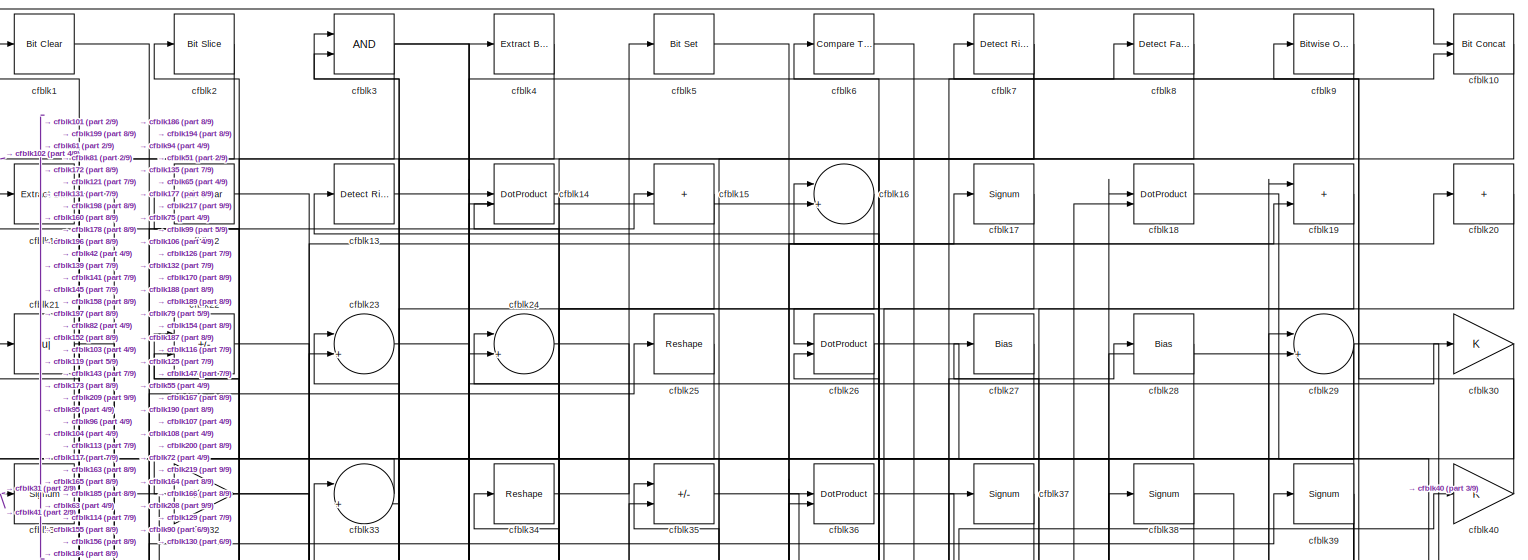
[diagram: root canvas - part 1/9, full width, top band]
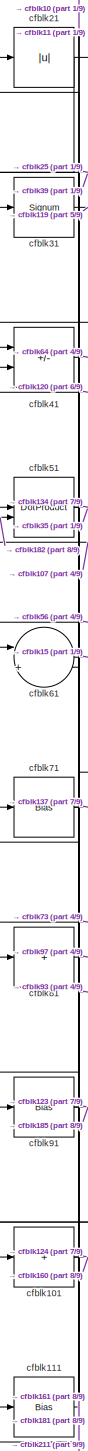
[diagram: root canvas - part 2/9, top left region]
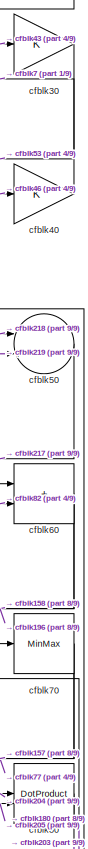
[diagram: root canvas - part 3/9, top right region]
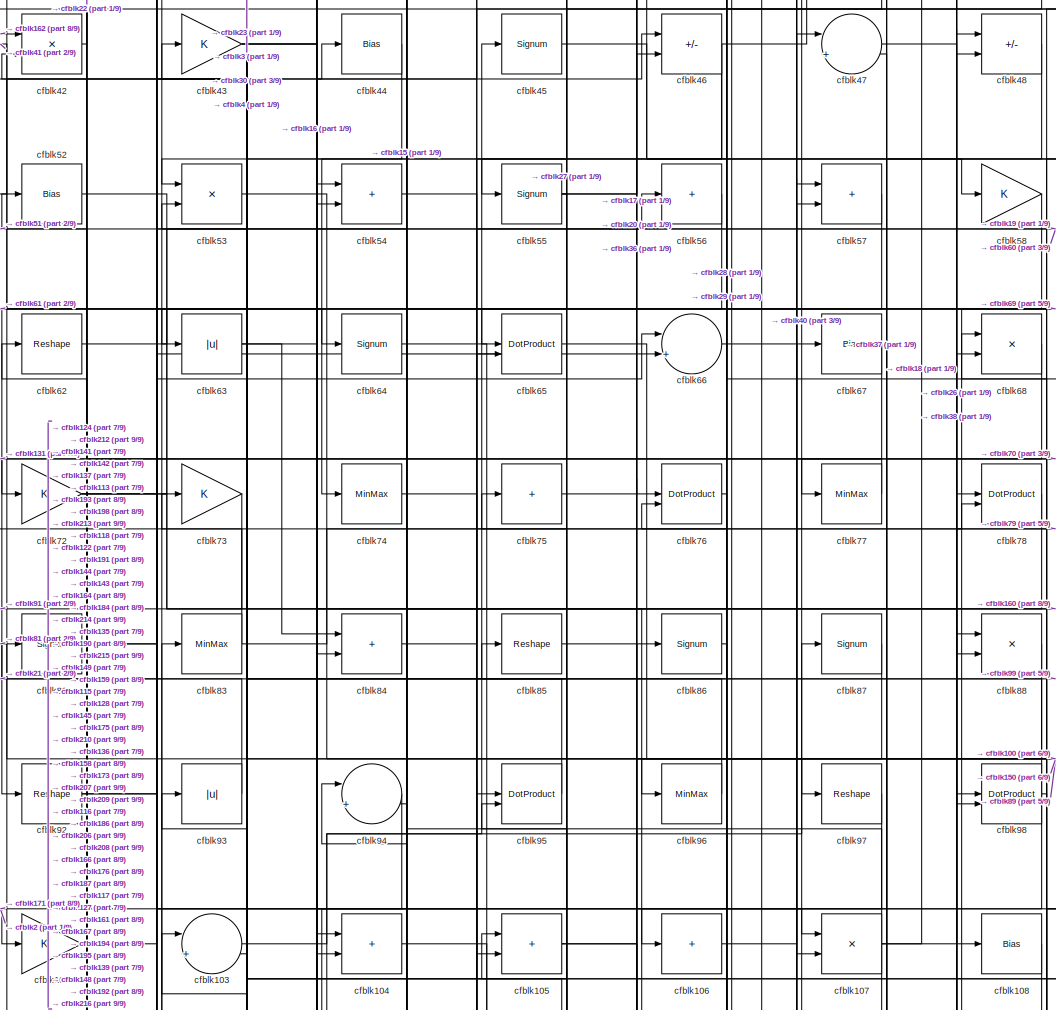
[diagram: root canvas - part 4/9, central region]
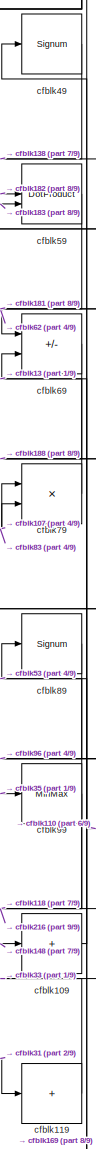
[diagram: root canvas - part 5/9, middle right region]
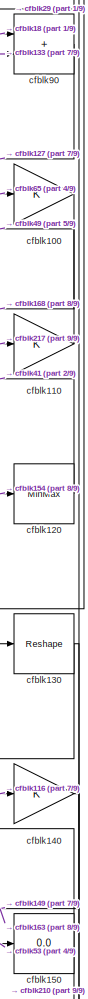
[diagram: root canvas - part 6/9, middle right region]
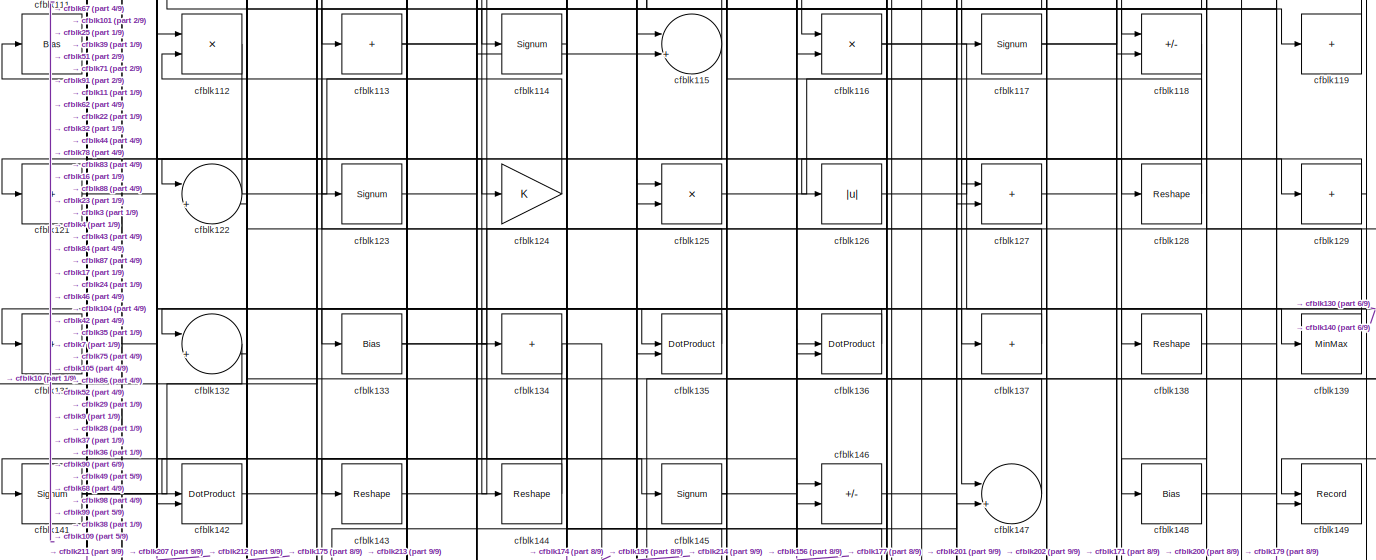
[diagram: root canvas - part 7/9, full width, middle band]
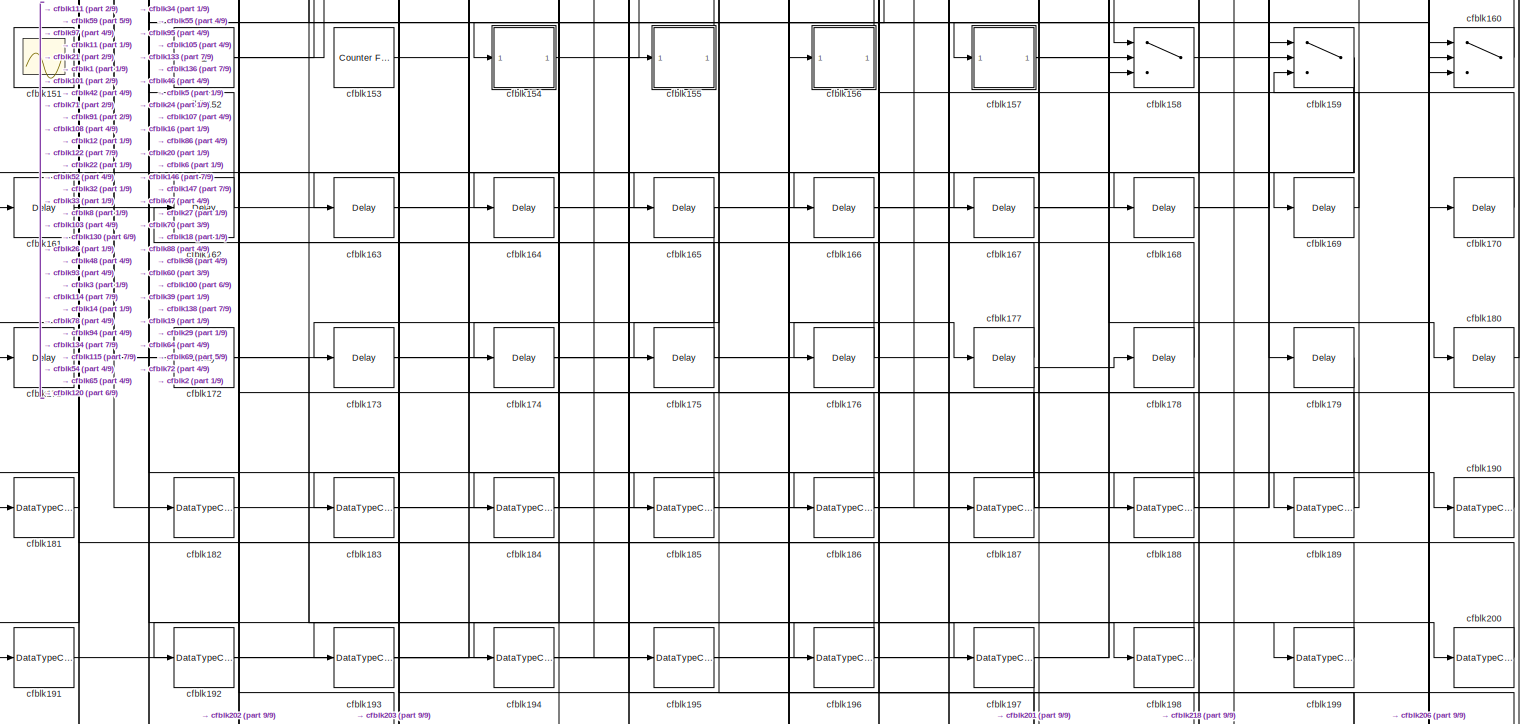
[diagram: root canvas - part 8/9, full width, bottom band]
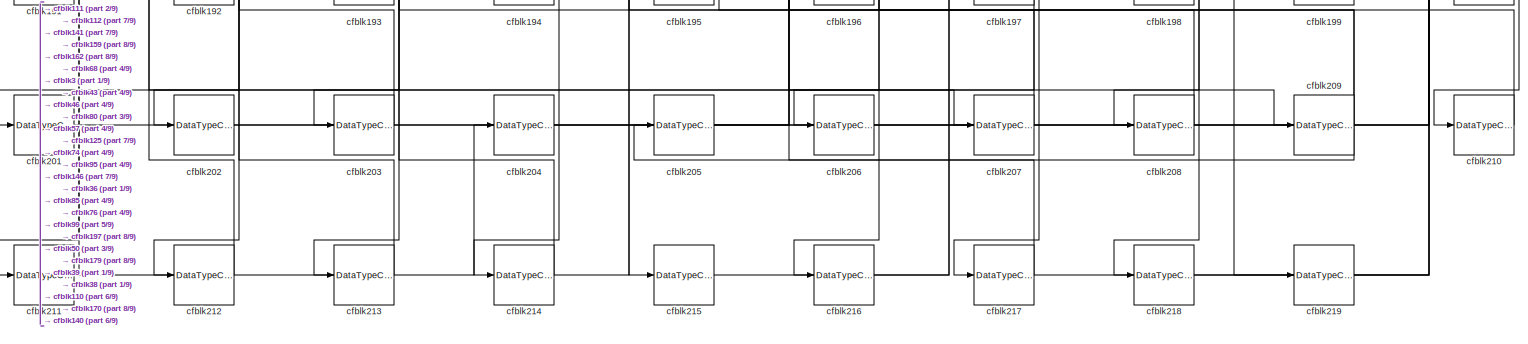
[diagram: root canvas - part 9/9, full width, bottom band]
MODEL slx_a0b1b28ec105
KIND model
CONFIG AbsTol = auto
CONFIG EnableMultiTasking = off
CONFIG FixedStep = auto
CONFIG MaxStep = auto
CONFIG MinStep = auto
CONFIG RelTol = 1e-3
CONFIG SampleTimeConstraint = Unconstrained
CONFIG SolverName = VariableStepAuto
CONFIG StartTime = 0.0
CONFIG StopTime = 10.0
BLOCK [Reference] cfblk1  REF=simulink/Logic and Bit
Operations/Bit Clear
  LibrarySourceBlock = hdlsllib/Logic and Bit\nOperations/Bit Clear
  SourceBlock = simulink/Logic and Bit\nOperations/Bit Clear
  SourceType = Bit Clear
BLOCK [Reference] cfblk10  REF=hdlsllib/Logic and Bit
Operations/Bit Concat
  SourceBlock = hdlsllib/Logic and Bit\nOperations/Bit Concat
  SourceType = Bit Concat
BLOCK [Gain] cfblk100
BLOCK [Sum] cfblk101
  IconShape = rectangular
  Inputs = +
BLOCK [Gain] cfblk102
BLOCK [Sum] cfblk103
  Inputs = |++
BLOCK [Sum] cfblk104
  IconShape = rectangular
BLOCK [Sum] cfblk105
  IconShape = rectangular
BLOCK [Sum] cfblk106
  IconShape = rectangular
  Inputs = +
BLOCK [Product] cfblk107
  Inputs = */
  RndMeth = Zero
  SaturateOnIntegerOverflow = on
BLOCK [Bias] cfblk108
  Bias = 0.0
  SaturateOnIntegerOverflow = off
BLOCK [Sum] cfblk109
  IconShape = rectangular
  Inputs = +
BLOCK [Reference] cfblk11  REF=simulink/Logic and Bit
Operations/Extract Bits
  LibrarySourceBlock = hdlsllib/Logic and Bit\nOperations/Extract Bits
  SourceBlock = simulink/Logic and Bit\nOperations/Extract Bits
  SourceType = Extract Bits
BLOCK [Gain] cfblk110
BLOCK [Bias] cfblk111
  Bias = 0.0
  SaturateOnIntegerOverflow = off
BLOCK [Product] cfblk112
  Inputs = */
  RndMeth = Zero
  SaturateOnIntegerOverflow = on
BLOCK [Sum] cfblk113
  IconShape = rectangular
  Inputs = +
BLOCK [Signum] cfblk114
BLOCK [Sum] cfblk115
  Inputs = |++
BLOCK [Product] cfblk116
  Inputs = */
  RndMeth = Zero
  SaturateOnIntegerOverflow = on
BLOCK [Signum] cfblk117
BLOCK [Sum] cfblk118
  IconShape = rectangular
  Inputs = +-
BLOCK [Sum] cfblk119
  IconShape = rectangular
  Inputs = +
BLOCK [Reference] cfblk12  REF=simulink/Logic and Bit
Operations/Bit Clear
  LibrarySourceBlock = hdlsllib/Logic and Bit\nOperations/Bit Clear
  SourceBlock = simulink/Logic and Bit\nOperations/Bit Clear
  SourceType = Bit Clear
BLOCK [MinMax] cfblk120
BLOCK [Sum] cfblk121
  IconShape = rectangular
  Inputs = +
BLOCK [Sum] cfblk122
  Inputs = |++
BLOCK [Signum] cfblk123
BLOCK [Gain] cfblk124
BLOCK [Product] cfblk125
  Inputs = */
  RndMeth = Zero
  SaturateOnIntegerOverflow = on
BLOCK [Abs] cfblk126
  SaturateOnIntegerOverflow = off
BLOCK [Sum] cfblk127
  IconShape = rectangular
BLOCK [Reshape] cfblk128
BLOCK [Sum] cfblk129
  IconShape = rectangular
  Inputs = +
BLOCK [Reference] cfblk13  REF=hdlsllib/Logic and Bit
Operations/Detect Rise
Positive
  SourceBlock = hdlsllib/Logic and Bit\nOperations/Detect Rise\nPositive
  SourceType = Detect Rise Positive
BLOCK [Reshape] cfblk130
BLOCK [Sum] cfblk131
  IconShape = rectangular
  Inputs = +
BLOCK [Sum] cfblk132
  Inputs = |++
BLOCK [Bias] cfblk133
  Bias = 0.0
  SaturateOnIntegerOverflow = off
BLOCK [Sum] cfblk134
  IconShape = rectangular
  Inputs = +
BLOCK [DotProduct] cfblk135
  OutDataTypeStr = Inherit: Inherit via internal rule
BLOCK [DotProduct] cfblk136
  OutDataTypeStr = Inherit: Inherit via internal rule
BLOCK [Sum] cfblk137
  IconShape = rectangular
  Inputs = +
BLOCK [Reshape] cfblk138
BLOCK [MinMax] cfblk139
BLOCK [DotProduct] cfblk14
  OutDataTypeStr = Inherit: Inherit via internal rule
BLOCK [Gain] cfblk140
BLOCK [Signum] cfblk141
BLOCK [DotProduct] cfblk142
  OutDataTypeStr = Inherit: Inherit via internal rule
BLOCK [Reshape] cfblk143
BLOCK [Reshape] cfblk144
BLOCK [Signum] cfblk145
BLOCK [Sum] cfblk146
  IconShape = rectangular
  Inputs = +-
BLOCK [Sum] cfblk147
  Inputs = |++
BLOCK [Bias] cfblk148
  Bias = 0.0
  SaturateOnIntegerOverflow = off
BLOCK [Record] cfblk149
  CompatibilityTag = XY
  FileSettingsInternal = {"entries":[{"content":{"excelSettings":{"content":{},"type":"Streamout.ExcelSettings"}},"type":"Streamout.FileSettingStorage","uuid":""}],"packageUris":["http:\/\/schema.mathworks.com\/mf0\/streamout_blocks\/R2020a"],"version":"1.0"}
  Layout = [1 1]
  SignalsInternal = {"entries":[{"content":{"signals":[{"content":{"blockPath":[],"dimensions":[1],"domain":"","lineColor":"#a2142f","plots":[1],"port":1,"signalID":5917,"signalName":"XY Graph:1"},"type":"RecordBlkView.Signal","uuid":""},{"content":{"blockPath":[],"dimensions":[1],"domain":"","lineColor":"#139fff","plots":[1],"port":2,"signalID":5920,"signalName":"XY Graph:2"},"type":"RecordBlkView.Signal","uuid":""}...<+146ch>
  VisualizationBindings = {"xyplotplugin":{"info":[{"series":[{"bindingParametersList":[{"parameter":"X-Axis","signalID":5917,"signalName":"XY Graph:1"},{"parameter":"Y-Axis","signalID":5920,"signalName":"XY Graph:2"}],"seriesID":54583}],"subplotID":1}]}}
  st = -1
BLOCK [Sum] cfblk15
  IconShape = rectangular
  Inputs = +
BLOCK [Display] cfblk150
  Decimation = 1
BLOCK [Scope] cfblk151
  Floating = on
  NumInputPorts = 1
  ScopeSpecificationString = Simulink.scopes.TimeScopeBlockCfg('CurrentConfiguration', extmgr.ConfigurationSet(extmgr.Configuration('Core','General UI',true,'FigureColor',[0.156862745098039 0.156862745098039 0.156862745098039]),extmgr.Configuration('Core','Source UI',true),extmgr.Configuration('Sources','WiredSimulink',true,'DataLoggingVariableName','ScopeData1','DataLoggingSaveFormat','StructureWithTime','DataLoggingLimitDat...<+2713ch>
BLOCK [Constant] cfblk152
  SampleTime = -1
BLOCK [Reference] cfblk153  REF=hdlsllib/Sources/Counter
Free-Running
  SourceBlock = hdlsllib/Sources/Counter\nFree-Running
  SourceType = Counter Free-Running
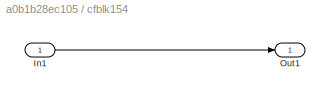
BLOCK [SubSystem] cfblk154
  LibrarySourceBlock = hdlsllib/Ports &\nSubsystems/Subsystem
BLOCK [Inport] cfblk154/In1
BLOCK [Outport] cfblk154/Out1
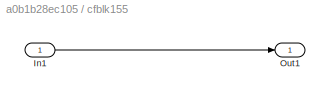
BLOCK [SubSystem] cfblk155
  LibrarySourceBlock = hdlsllib/Ports &\nSubsystems/Subsystem
BLOCK [Inport] cfblk155/In1
BLOCK [Outport] cfblk155/Out1
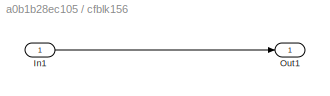
BLOCK [SubSystem] cfblk156
  LibrarySourceBlock = hdlsllib/Ports &\nSubsystems/Subsystem
BLOCK [Inport] cfblk156/In1
BLOCK [Outport] cfblk156/Out1
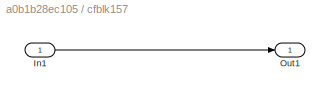
BLOCK [SubSystem] cfblk157
  LibrarySourceBlock = hdlsllib/Ports &\nSubsystems/Subsystem
BLOCK [Inport] cfblk157/In1
BLOCK [Outport] cfblk157/Out1
BLOCK [Switch] cfblk158
  InputSameDT = off
  SaturateOnIntegerOverflow = off
BLOCK [Switch] cfblk159
  InputSameDT = off
  SaturateOnIntegerOverflow = off
BLOCK [Sum] cfblk16
  Inputs = |++
BLOCK [Switch] cfblk160
  InputSameDT = off
  SaturateOnIntegerOverflow = off
BLOCK [Delay] cfblk161
  InputPortMap = u0
  SampleTime = 1
BLOCK [Delay] cfblk162
  InputPortMap = u0
  SampleTime = 1
BLOCK [Delay] cfblk163
  InputPortMap = u0
  SampleTime = 1
BLOCK [Delay] cfblk164
  InputPortMap = u0
  SampleTime = 1
BLOCK [Delay] cfblk165
  InputPortMap = u0
  SampleTime = 1
BLOCK [Delay] cfblk166
  InputPortMap = u0
  SampleTime = 1
BLOCK [Delay] cfblk167
  InputPortMap = u0
  SampleTime = 1
BLOCK [Delay] cfblk168
  InputPortMap = u0
  SampleTime = 1
BLOCK [Delay] cfblk169
  InputPortMap = u0
  SampleTime = 1
BLOCK [Signum] cfblk17
BLOCK [Delay] cfblk170
  InputPortMap = u0
  SampleTime = 1
BLOCK [Delay] cfblk171
  InputPortMap = u0
  SampleTime = 1
BLOCK [Delay] cfblk172
  InputPortMap = u0
  SampleTime = 1
BLOCK [Delay] cfblk173
  InputPortMap = u0
  SampleTime = 1
BLOCK [Delay] cfblk174
  InputPortMap = u0
  SampleTime = 1
BLOCK [Delay] cfblk175
  InputPortMap = u0
  SampleTime = 1
BLOCK [Delay] cfblk176
  InputPortMap = u0
  SampleTime = 1
BLOCK [Delay] cfblk177
  InputPortMap = u0
  SampleTime = 1
BLOCK [Delay] cfblk178
  InputPortMap = u0
  SampleTime = 1
BLOCK [Delay] cfblk179
  InputPortMap = u0
  SampleTime = 1
BLOCK [DotProduct] cfblk18
  OutDataTypeStr = Inherit: Inherit via internal rule
BLOCK [Delay] cfblk180
  InputPortMap = u0
  SampleTime = 1
BLOCK [DataTypeConversion] cfblk181
  OutDataTypeStr = uint8
  RndMeth = Floor
  SaturateOnIntegerOverflow = off
BLOCK [DataTypeConversion] cfblk182
  OutDataTypeStr = uint8
  RndMeth = Floor
  SaturateOnIntegerOverflow = off
BLOCK [DataTypeConversion] cfblk183
  OutDataTypeStr = uint8
  RndMeth = Floor
  SaturateOnIntegerOverflow = off
BLOCK [DataTypeConversion] cfblk184
  OutDataTypeStr = uint8
  RndMeth = Floor
  SaturateOnIntegerOverflow = off
BLOCK [DataTypeConversion] cfblk185
  OutDataTypeStr = uint8
  RndMeth = Floor
  SaturateOnIntegerOverflow = off
BLOCK [DataTypeConversion] cfblk186
  OutDataTypeStr = uint8
  RndMeth = Floor
  SaturateOnIntegerOverflow = off
BLOCK [DataTypeConversion] cfblk187
  RndMeth = Floor
  SaturateOnIntegerOverflow = off
BLOCK [DataTypeConversion] cfblk188
  OutDataTypeStr = uint8
  RndMeth = Floor
  SaturateOnIntegerOverflow = off
BLOCK [DataTypeConversion] cfblk189
  RndMeth = Floor
  SaturateOnIntegerOverflow = off
BLOCK [Sum] cfblk19
  IconShape = rectangular
BLOCK [DataTypeConversion] cfblk190
  OutDataTypeStr = uint8
  RndMeth = Floor
  SaturateOnIntegerOverflow = off
BLOCK [DataTypeConversion] cfblk191
  OutDataTypeStr = uint8
  RndMeth = Floor
  SaturateOnIntegerOverflow = off
BLOCK [DataTypeConversion] cfblk192
  OutDataTypeStr = uint8
  RndMeth = Floor
  SaturateOnIntegerOverflow = off
BLOCK [DataTypeConversion] cfblk193
  RndMeth = Floor
  SaturateOnIntegerOverflow = off
BLOCK [DataTypeConversion] cfblk194
  OutDataTypeStr = uint8
  RndMeth = Floor
  SaturateOnIntegerOverflow = off
BLOCK [DataTypeConversion] cfblk195
  OutDataTypeStr = uint8
  RndMeth = Floor
  SaturateOnIntegerOverflow = off
BLOCK [DataTypeConversion] cfblk196
  OutDataTypeStr = boolean
  RndMeth = Floor
  SaturateOnIntegerOverflow = off
BLOCK [DataTypeConversion] cfblk197
  OutDataTypeStr = uint8
  RndMeth = Floor
  SaturateOnIntegerOverflow = off
BLOCK [DataTypeConversion] cfblk198
  OutDataTypeStr = uint8
  RndMeth = Floor
  SaturateOnIntegerOverflow = off
BLOCK [DataTypeConversion] cfblk199
  OutDataTypeStr = uint8
  RndMeth = Floor
  SaturateOnIntegerOverflow = off
BLOCK [Reference] cfblk2  REF=hdlsllib/Logic and Bit
Operations/Bit Slice
  SourceBlock = hdlsllib/Logic and Bit\nOperations/Bit Slice
  SourceType = Bit Slice
BLOCK [Sum] cfblk20
  IconShape = rectangular
  Inputs = +
BLOCK [DataTypeConversion] cfblk200
  OutDataTypeStr = uint8
  RndMeth = Floor
  SaturateOnIntegerOverflow = off
BLOCK [DataTypeConversion] cfblk201
  OutDataTypeStr = uint8
  RndMeth = Floor
  SaturateOnIntegerOverflow = off
BLOCK [DataTypeConversion] cfblk202
  OutDataTypeStr = uint8
  RndMeth = Floor
  SaturateOnIntegerOverflow = off
BLOCK [DataTypeConversion] cfblk203
  OutDataTypeStr = uint8
  RndMeth = Floor
  SaturateOnIntegerOverflow = off
BLOCK [DataTypeConversion] cfblk204
  OutDataTypeStr = uint8
  RndMeth = Floor
  SaturateOnIntegerOverflow = off
BLOCK [DataTypeConversion] cfblk205
  OutDataTypeStr = uint8
  RndMeth = Floor
  SaturateOnIntegerOverflow = off
BLOCK [DataTypeConversion] cfblk206
  OutDataTypeStr = uint8
  RndMeth = Floor
  SaturateOnIntegerOverflow = off
BLOCK [DataTypeConversion] cfblk207
  OutDataTypeStr = uint8
  RndMeth = Floor
  SaturateOnIntegerOverflow = off
BLOCK [DataTypeConversion] cfblk208
  OutDataTypeStr = uint8
  RndMeth = Floor
  SaturateOnIntegerOverflow = off
BLOCK [DataTypeConversion] cfblk209
  RndMeth = Floor
  SaturateOnIntegerOverflow = off
BLOCK [Abs] cfblk21
  SaturateOnIntegerOverflow = off
BLOCK [DataTypeConversion] cfblk210
  OutDataTypeStr = uint8
  RndMeth = Floor
  SaturateOnIntegerOverflow = off
BLOCK [DataTypeConversion] cfblk211
  RndMeth = Floor
  SaturateOnIntegerOverflow = off
BLOCK [DataTypeConversion] cfblk212
  OutDataTypeStr = uint8
  RndMeth = Floor
  SaturateOnIntegerOverflow = off
BLOCK [DataTypeConversion] cfblk213
  OutDataTypeStr = uint8
  RndMeth = Floor
  SaturateOnIntegerOverflow = off
BLOCK [DataTypeConversion] cfblk214
  RndMeth = Floor
  SaturateOnIntegerOverflow = off
BLOCK [DataTypeConversion] cfblk215
  OutDataTypeStr = uint8
  RndMeth = Floor
  SaturateOnIntegerOverflow = off
BLOCK [DataTypeConversion] cfblk216
  OutDataTypeStr = uint8
  RndMeth = Floor
  SaturateOnIntegerOverflow = off
BLOCK [DataTypeConversion] cfblk217
  RndMeth = Floor
  SaturateOnIntegerOverflow = off
BLOCK [DataTypeConversion] cfblk218
  OutDataTypeStr = uint8
  RndMeth = Floor
  SaturateOnIntegerOverflow = off
BLOCK [DataTypeConversion] cfblk219
  OutDataTypeStr = uint8
  RndMeth = Floor
  SaturateOnIntegerOverflow = off
BLOCK [Sum] cfblk22
  IconShape = rectangular
  Inputs = +-
BLOCK [Sum] cfblk23
  Inputs = |++
BLOCK [Sum] cfblk24
  Inputs = |++
BLOCK [Reshape] cfblk25
BLOCK [DotProduct] cfblk26
  OutDataTypeStr = Inherit: Inherit via internal rule
BLOCK [Bias] cfblk27
  Bias = 0.0
  SaturateOnIntegerOverflow = off
BLOCK [Bias] cfblk28
  Bias = 0.0
  SaturateOnIntegerOverflow = off
BLOCK [Sum] cfblk29
  Inputs = |++
BLOCK [Logic] cfblk3
  AllPortsSameDT = off
  OutDataTypeStr = boolean
BLOCK [Gain] cfblk30
BLOCK [Signum] cfblk31
BLOCK [Gain] cfblk32
BLOCK [Sum] cfblk33
  Inputs = |++
BLOCK [Reshape] cfblk34
BLOCK [Sum] cfblk35
  IconShape = rectangular
  Inputs = +-
BLOCK [DotProduct] cfblk36
  OutDataTypeStr = Inherit: Inherit via internal rule
BLOCK [Signum] cfblk37
BLOCK [Signum] cfblk38
BLOCK [Signum] cfblk39
BLOCK [Reference] cfblk4  REF=simulink/Logic and Bit
Operations/Extract Bits
  LibrarySourceBlock = hdlsllib/Logic and Bit\nOperations/Extract Bits
  SourceBlock = simulink/Logic and Bit\nOperations/Extract Bits
  SourceType = Extract Bits
BLOCK [Gain] cfblk40
BLOCK [Sum] cfblk41
  IconShape = rectangular
  Inputs = +-
BLOCK [Product] cfblk42
  Inputs = */
  RndMeth = Zero
  SaturateOnIntegerOverflow = on
BLOCK [Gain] cfblk43
BLOCK [Bias] cfblk44
  Bias = 0.0
  SaturateOnIntegerOverflow = off
BLOCK [Signum] cfblk45
BLOCK [Sum] cfblk46
  IconShape = rectangular
  Inputs = +-
BLOCK [Sum] cfblk47
  Inputs = |++
BLOCK [Sum] cfblk48
  IconShape = rectangular
  Inputs = +-
BLOCK [Signum] cfblk49
BLOCK [Reference] cfblk5  REF=simulink/Logic and Bit
Operations/Bit Set
  LibrarySourceBlock = hdlsllib/Logic and Bit\nOperations/Bit Set
  SourceBlock = simulink/Logic and Bit\nOperations/Bit Set
  SourceType = Bit Set
BLOCK [Sum] cfblk50
  Inputs = |++
BLOCK [DotProduct] cfblk51
  OutDataTypeStr = Inherit: Inherit via internal rule
BLOCK [Bias] cfblk52
  Bias = 0.0
  SaturateOnIntegerOverflow = off
BLOCK [Product] cfblk53
  Inputs = */
  RndMeth = Zero
  SaturateOnIntegerOverflow = on
BLOCK [Sum] cfblk54
  IconShape = rectangular
BLOCK [Signum] cfblk55
BLOCK [Sum] cfblk56
  IconShape = rectangular
  Inputs = +
BLOCK [Sum] cfblk57
  IconShape = rectangular
BLOCK [Gain] cfblk58
BLOCK [DotProduct] cfblk59
  OutDataTypeStr = Inherit: Inherit via internal rule
BLOCK [Reference] cfblk6  REF=hdlsllib/Logic and Bit
Operations/Compare
To Zero
  SourceBlock = hdlsllib/Logic and Bit\nOperations/Compare\nTo Zero
  SourceType = Compare To Zero
BLOCK [Sum] cfblk60
  IconShape = rectangular
BLOCK [Sum] cfblk61
  Inputs = |++
BLOCK [Reshape] cfblk62
BLOCK [Abs] cfblk63
  SaturateOnIntegerOverflow = off
BLOCK [Signum] cfblk64
BLOCK [DotProduct] cfblk65
  OutDataTypeStr = Inherit: Inherit via internal rule
BLOCK [Sum] cfblk66
  Inputs = |++
BLOCK [Bias] cfblk67
  Bias = 0.0
  SaturateOnIntegerOverflow = off
BLOCK [Product] cfblk68
  Inputs = */
  RndMeth = Zero
  SaturateOnIntegerOverflow = on
BLOCK [Sum] cfblk69
  IconShape = rectangular
  Inputs = +-
BLOCK [Reference] cfblk7  REF=hdlsllib/Logic and Bit
Operations/Detect Rise
Nonnegative
  SourceBlock = hdlsllib/Logic and Bit\nOperations/Detect Rise\nNonnegative
  SourceType = Detect Rise Nonnegative
BLOCK [MinMax] cfblk70
BLOCK [Bias] cfblk71
  Bias = 0.0
  SaturateOnIntegerOverflow = off
BLOCK [Gain] cfblk72
BLOCK [Gain] cfblk73
BLOCK [MinMax] cfblk74
BLOCK [Sum] cfblk75
  IconShape = rectangular
  Inputs = +
BLOCK [DotProduct] cfblk76
  OutDataTypeStr = Inherit: Inherit via internal rule
BLOCK [MinMax] cfblk77
BLOCK [DotProduct] cfblk78
  OutDataTypeStr = Inherit: Inherit via internal rule
BLOCK [Product] cfblk79
  Inputs = */
  RndMeth = Zero
  SaturateOnIntegerOverflow = on
BLOCK [Reference] cfblk8  REF=hdlsllib/Logic and Bit
Operations/Detect Fall
Negative
  SourceBlock = hdlsllib/Logic and Bit\nOperations/Detect Fall\nNegative
  SourceType = Detect Fall Negative
BLOCK [DotProduct] cfblk80
  OutDataTypeStr = Inherit: Inherit via internal rule
BLOCK [Sum] cfblk81
  IconShape = rectangular
  Inputs = +
BLOCK [Signum] cfblk82
BLOCK [MinMax] cfblk83
BLOCK [Sum] cfblk84
  IconShape = rectangular
BLOCK [Reshape] cfblk85
BLOCK [Signum] cfblk86
BLOCK [Signum] cfblk87
BLOCK [Product] cfblk88
  Inputs = */
  RndMeth = Zero
  SaturateOnIntegerOverflow = on
BLOCK [Signum] cfblk89
BLOCK [Reference] cfblk9  REF=simulink/Logic and Bit
Operations/Bitwise
Operator
  LibrarySourceBlock = hdlsllib/Logic and Bit\nOperations/Bitwise\nOperator
  SourceBlock = simulink/Logic and Bit\nOperations/Bitwise\nOperator
  SourceType = Bitwise Operator
BLOCK [Sum] cfblk90
  IconShape = rectangular
BLOCK [Bias] cfblk91
  Bias = 0.0
  SaturateOnIntegerOverflow = off
BLOCK [Reshape] cfblk92
BLOCK [Abs] cfblk93
  SaturateOnIntegerOverflow = off
BLOCK [Sum] cfblk94
  Inputs = |++
BLOCK [DotProduct] cfblk95
  OutDataTypeStr = Inherit: Inherit via internal rule
BLOCK [MinMax] cfblk96
BLOCK [Reshape] cfblk97
BLOCK [DotProduct] cfblk98
  OutDataTypeStr = Inherit: Inherit via internal rule
BLOCK [MinMax] cfblk99
LINE cfblk100:1 -> cfblk168:1
NET cfblk101:1 -> cfblk124:1, cfblk160:3
LINE cfblk102:1 -> cfblk66:1
LINE cfblk103:1 -> cfblk45:1
LINE cfblk104:1 -> cfblk149:2
NET cfblk105:1 -> cfblk136:2, cfblk158:2
LINE cfblk106:1 -> cfblk67:1
NET cfblk107:1 -> cfblk176:1, cfblk18:2, cfblk51:1, cfblk79:2
LINE cfblk108:1 -> cfblk192:1
LINE cfblk109:1 -> cfblk89:1
LINE cfblk10:1 -> cfblk61:2
LINE cfblk110:1 -> cfblk49:1
LINE cfblk111:1 -> cfblk161:1
LINE cfblk112:1 -> cfblk211:1
NET cfblk113:1 -> cfblk46:1, cfblk4:1
LINE cfblk114:1 -> cfblk174:1
NET cfblk115:1 -> cfblk142:1, cfblk42:2
NET cfblk116:1 -> cfblk140:1, cfblk28:1
NET cfblk117:1 -> cfblk29:2, cfblk68:2
LINE cfblk118:1 -> cfblk127:2
LINE cfblk119:1 -> cfblk33:2
NET cfblk11:1 -> cfblk172:1, cfblk81:1
LINE cfblk120:1 -> cfblk41:1
LINE cfblk121:1 -> cfblk25:1
NET cfblk122:1 -> cfblk121:1, cfblk84:2
LINE cfblk123:1 -> cfblk115:2
LINE cfblk124:1 -> cfblk62:1
LINE cfblk125:1 -> cfblk37:1
LINE cfblk126:1 -> cfblk128:1
LINE cfblk127:1 -> cfblk78:1
LINE cfblk128:1 -> cfblk75:1
NET cfblk129:1 -> cfblk122:1, cfblk9:1
LINE cfblk12:1 -> cfblk197:1
NET cfblk130:1 -> cfblk149:1, cfblk163:1
LINE cfblk131:1 -> cfblk39:1
LINE cfblk132:1 -> cfblk10:1
NET cfblk133:1 -> cfblk156:1, cfblk90:2
NET cfblk134:1 -> cfblk142:2, cfblk195:1
LINE cfblk135:1 -> cfblk11:1
LINE cfblk136:1 -> cfblk133:1
LINE cfblk137:1 -> cfblk83:1
LINE cfblk138:1 -> cfblk179:1
LINE cfblk139:1 -> cfblk68:1
LINE cfblk13:1 -> cfblk10:2
LINE cfblk140:1 -> cfblk210:1
NET cfblk141:1 -> cfblk207:1, cfblk23:2, cfblk78:2
LINE cfblk142:1 -> cfblk44:1
LINE cfblk143:1 -> cfblk87:1
LINE cfblk144:1 -> cfblk141:1
NET cfblk145:1 -> cfblk105:1, cfblk86:1
LINE cfblk146:1 -> cfblk200:1
LINE cfblk147:1 -> cfblk35:1
LINE cfblk148:1 -> cfblk109:1
LINE cfblk14:1 -> cfblk184:1
NET cfblk152:1 -> cfblk33:1, cfblk8:1
LINE cfblk153:1 -> cfblk189:1
LINE cfblk154/In1:1 -> cfblk154/Out1:1
LINE cfblk154:1 -> cfblk120:1
LINE cfblk155/In1:1 -> cfblk155/Out1:1
LINE cfblk155:1 -> cfblk34:1
LINE cfblk156/In1:1 -> cfblk156/Out1:1
LINE cfblk156:1 -> cfblk24:1
LINE cfblk157/In1:1 -> cfblk157/Out1:1
NET cfblk157:1 -> cfblk180:1, cfblk60:1
LINE cfblk158:1 -> cfblk19:1
NET cfblk159:1 -> cfblk169:1, cfblk191:1, cfblk202:1
LINE cfblk15:1 -> cfblk94:2
LINE cfblk160:1 -> cfblk2:1
LINE cfblk161:1 -> cfblk98:1
LINE cfblk162:1 -> cfblk42:1
LINE cfblk163:1 -> cfblk24:2
LINE cfblk164:1 -> cfblk29:1
LINE cfblk165:1 -> cfblk183:1
LINE cfblk166:1 -> cfblk47:1
LINE cfblk167:1 -> cfblk88:1
LINE cfblk168:1 -> cfblk159:1
LINE cfblk169:1 -> cfblk69:2
LINE cfblk16:1 -> cfblk143:1
LINE cfblk170:1 -> cfblk16:1
LINE cfblk171:1 -> cfblk147:2
LINE cfblk172:1 -> cfblk199:1
LINE cfblk173:1 -> cfblk46:2
LINE cfblk174:1 -> cfblk115:1
LINE cfblk175:1 -> cfblk122:2
LINE cfblk176:1 -> cfblk103:1
LINE cfblk177:1 -> cfblk136:1
LINE cfblk178:1 -> cfblk22:2
LINE cfblk179:1 -> cfblk218:1
LINE cfblk17:1 -> cfblk114:1
LINE cfblk180:1 -> cfblk70:1
LINE cfblk181:1 -> cfblk71:1
LINE cfblk182:1 -> cfblk59:1
LINE cfblk183:1 -> cfblk59:2
LINE cfblk184:1 -> cfblk94:1
LINE cfblk185:1 -> cfblk14:1
LINE cfblk186:1 -> cfblk14:2
NET cfblk187:1 -> cfblk178:1, cfblk47:2, cfblk52:1, cfblk95:2
LINE cfblk188:1 -> cfblk6:1
NET cfblk189:1 -> cfblk159:3, cfblk26:2
LINE cfblk18:1 -> cfblk90:1
LINE cfblk190:1 -> cfblk27:1
LINE cfblk191:1 -> cfblk54:1
LINE cfblk192:1 -> cfblk54:2
NET cfblk193:1 -> cfblk155:1, cfblk65:2
LINE cfblk194:1 -> cfblk48:1
LINE cfblk195:1 -> cfblk48:2
LINE cfblk196:1 -> cfblk12:1
LINE cfblk197:1 -> cfblk201:1
LINE cfblk198:1 -> cfblk93:1
LINE cfblk199:1 -> cfblk1:1
LINE cfblk19:1 -> cfblk167:1
LINE cfblk1:1 -> cfblk198:1
LINE cfblk200:1 -> cfblk18:1
LINE cfblk201:1 -> cfblk146:1
LINE cfblk202:1 -> cfblk146:2
LINE cfblk203:1 -> cfblk162:1
LINE cfblk204:1 -> cfblk80:1
LINE cfblk205:1 -> cfblk80:2
LINE cfblk206:1 -> cfblk170:1
LINE cfblk207:1 -> cfblk76:1
LINE cfblk208:1 -> cfblk76:2
NET cfblk209:1 -> cfblk205:1, cfblk3:2, cfblk95:1
LINE cfblk20:1 -> cfblk154:1
LINE cfblk210:1 -> cfblk85:1
NET cfblk211:1 -> cfblk111:1, cfblk204:1
LINE cfblk212:1 -> cfblk112:1
LINE cfblk213:1 -> cfblk112:2
NET cfblk214:1 -> cfblk125:1, cfblk43:1
LINE cfblk215:1 -> cfblk57:1
LINE cfblk216:1 -> cfblk57:2
NET cfblk217:1 -> cfblk110:1, cfblk36:1
LINE cfblk218:1 -> cfblk50:1
LINE cfblk219:1 -> cfblk50:2
NET cfblk21:1 -> cfblk182:1, cfblk51:2
LINE cfblk22:1 -> cfblk145:1
LINE cfblk23:1 -> cfblk117:1
LINE cfblk24:1 -> cfblk129:1
LINE cfblk25:1 -> cfblk101:1
NET cfblk26:1 -> cfblk108:1, cfblk173:1
LINE cfblk27:1 -> cfblk65:1
LINE cfblk28:1 -> cfblk106:1
NET cfblk29:1 -> cfblk103:2, cfblk126:1, cfblk130:1
LINE cfblk2:1 -> cfblk102:1
LINE cfblk30:1 -> cfblk53:1
LINE cfblk31:1 -> cfblk119:1
NET cfblk32:1 -> cfblk139:1, cfblk158:3
LINE cfblk33:1 -> cfblk32:1
LINE cfblk34:1 -> cfblk5:1
LINE cfblk35:1 -> cfblk99:1
LINE cfblk36:1 -> cfblk147:1
LINE cfblk37:1 -> cfblk55:1
NET cfblk38:1 -> cfblk125:2, cfblk219:1
NET cfblk39:1 -> cfblk166:1, cfblk208:1, cfblk31:1, cfblk41:2
NET cfblk3:1 -> cfblk104:1, cfblk132:2, cfblk165:1
LINE cfblk40:1 -> cfblk7:1
LINE cfblk41:1 -> cfblk64:1
LINE cfblk42:1 -> cfblk22:1
NET cfblk43:1 -> cfblk118:2, cfblk30:1, cfblk88:2
LINE cfblk44:1 -> cfblk74:1
LINE cfblk45:1 -> cfblk58:1
NET cfblk46:1 -> cfblk135:2, cfblk213:1, cfblk40:1
LINE cfblk47:1 -> cfblk98:2
LINE cfblk48:1 -> cfblk193:1
LINE cfblk49:1 -> cfblk138:1
LINE cfblk4:1 -> cfblk63:1
LINE cfblk50:1 -> cfblk217:1
NET cfblk51:1 -> cfblk134:1, cfblk35:2
LINE cfblk52:1 -> cfblk116:1
LINE cfblk53:1 -> cfblk150:1
LINE cfblk54:1 -> cfblk190:1
NET cfblk55:1 -> cfblk175:1, cfblk17:1, cfblk20:1
LINE cfblk56:1 -> cfblk61:1
LINE cfblk57:1 -> cfblk214:1
LINE cfblk58:1 -> cfblk92:1
LINE cfblk59:1 -> cfblk181:1
LINE cfblk5:1 -> cfblk177:1
NET cfblk60:1 -> cfblk158:1, cfblk196:1
LINE cfblk61:1 -> cfblk15:1
LINE cfblk62:1 -> cfblk69:1
NET cfblk63:1 -> cfblk16:2, cfblk84:1
LINE cfblk64:1 -> cfblk159:2
LINE cfblk65:1 -> cfblk100:1
LINE cfblk66:1 -> cfblk107:2
LINE cfblk67:1 -> cfblk131:1
LINE cfblk68:1 -> cfblk212:1
LINE cfblk69:1 -> cfblk188:1
LINE cfblk6:1 -> cfblk187:1
NET cfblk70:1 -> cfblk157:1, cfblk77:1
NET cfblk71:1 -> cfblk137:1, cfblk160:2
NET cfblk72:1 -> cfblk105:2, cfblk160:1, cfblk38:1
LINE cfblk73:1 -> cfblk91:1
LINE cfblk74:1 -> cfblk215:1
LINE cfblk75:1 -> cfblk36:2
LINE cfblk76:1 -> cfblk206:1
LINE cfblk77:1 -> cfblk72:1
LINE cfblk78:1 -> cfblk164:1
LINE cfblk79:1 -> cfblk13:1
NET cfblk7:1 -> cfblk135:1, cfblk26:1
LINE cfblk80:1 -> cfblk203:1
LINE cfblk81:1 -> cfblk97:1
NET cfblk82:1 -> cfblk19:2, cfblk60:2
NET cfblk83:1 -> cfblk73:1, cfblk79:1
LINE cfblk84:1 -> cfblk56:1
LINE cfblk85:1 -> cfblk209:1
LINE cfblk86:1 -> cfblk186:1
LINE cfblk87:1 -> cfblk116:2
LINE cfblk88:1 -> cfblk113:1
LINE cfblk89:1 -> cfblk96:1
LINE cfblk8:1 -> cfblk194:1
LINE cfblk90:1 -> cfblk127:1
NET cfblk91:1 -> cfblk123:1, cfblk185:1
NET cfblk92:1 -> cfblk107:1, cfblk66:2
LINE cfblk93:1 -> cfblk21:1
LINE cfblk94:1 -> cfblk104:2
LINE cfblk95:1 -> cfblk3:1
LINE cfblk96:1 -> cfblk23:1
LINE cfblk97:1 -> cfblk171:1
NET cfblk98:1 -> cfblk144:1, cfblk148:1, cfblk82:1
NET cfblk99:1 -> cfblk118:1, cfblk216:1, cfblk53:2
LINE cfblk9:1 -> cfblk132:1
note: NET lines group one-source signal fan-out (src -> all destinations, sorted); 1:1 wires keep LINE
